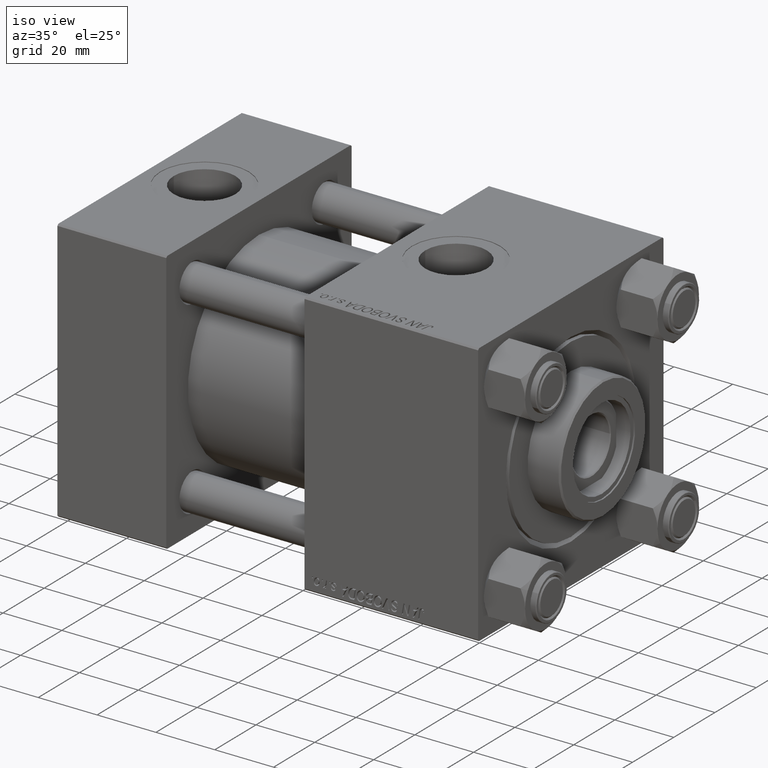
[diagram: clean part render]
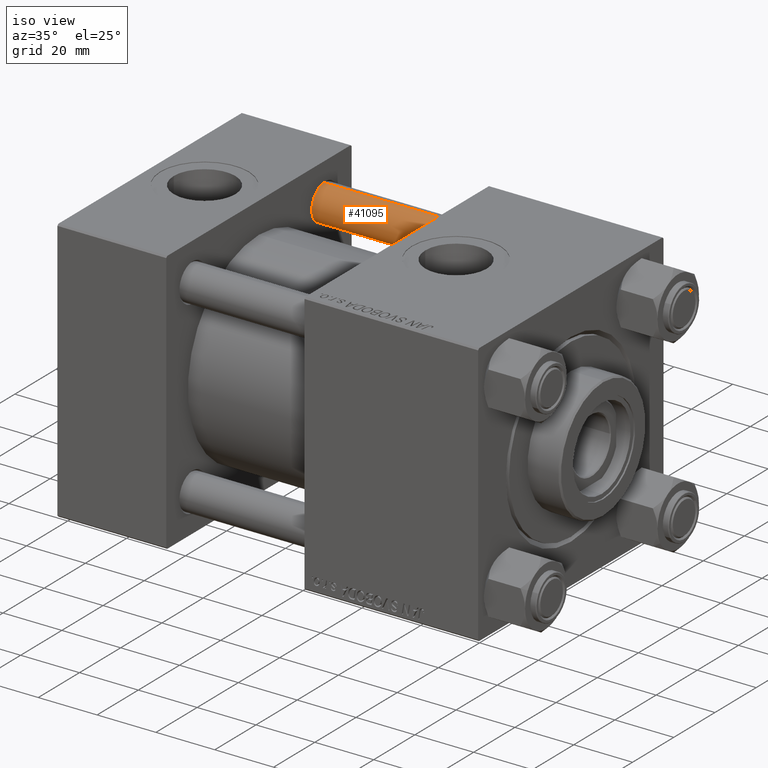
[diagram: same view with one face highlighted and labeled with its STEP entity id]
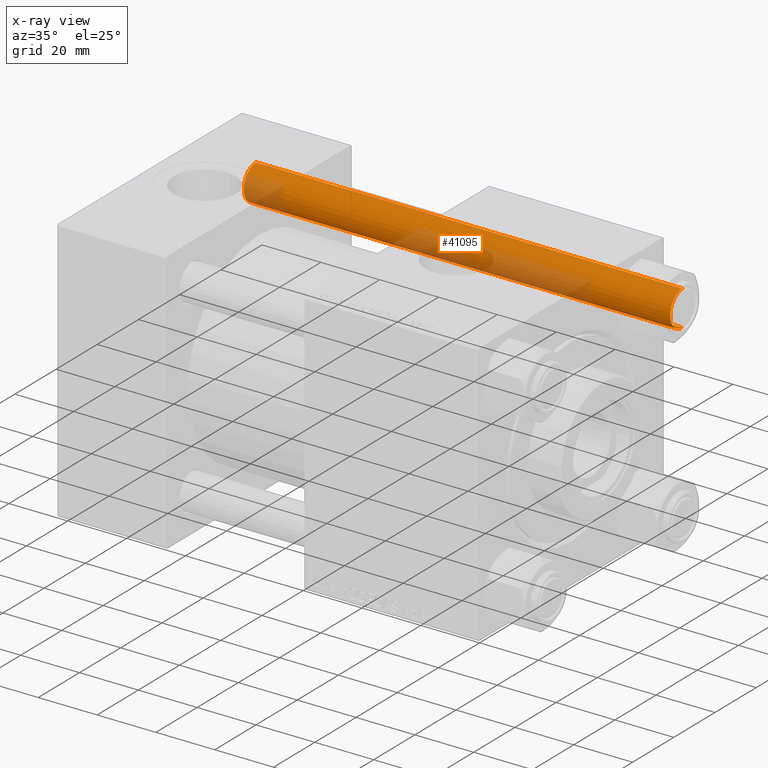
[diagram: x-ray of the same camera — body ghosted, the highlighted face saturated]
A machine part, iso view. The second image highlights one B-rep face of the part: STEP entity #41095.
The next image is the same camera in x-ray: the body ghosted, the highlighted face saturated — about 30% of this face is hidden behind the body in this view.
In plain terms, the highlighted cylindrical surface (edge-blend (fillet) strip) has radius 6 mm, axis along (-1, -0, -0).
Its self-contained STEP definition (entity closure, byte-faithful):
#672 = DIRECTION ( 'NONE',  ( -0.000000000000000000, -0.000000000000000000, -1.000000000000000000 ) ) ;
#792 = LINE ( 'NONE', #20171, #31209 ) ;
#1192 = ORIENTED_EDGE ( 'NONE', *, *, #1891, .T. ) ;
#1891 = EDGE_CURVE ( 'NONE', #30953, #5823, #38316, .T. ) ;
#4831 = ORIENTED_EDGE ( 'NONE', *, *, #19213, .T. ) ;
#5280 = VECTOR ( 'NONE', #672, 1000.000000000000000 ) ;
#5823 = VERTEX_POINT ( 'NONE', #24023 ) ;
#6479 = CYLINDRICAL_SURFACE ( 'NONE', #33219, 6.000000000000000888 ) ;
#7083 = CARTESIAN_POINT ( 'NONE',  ( -6.000000000000000888, 0.000000000000000000, 0.5000000000000004441 ) ) ;
#7944 = CARTESIAN_POINT ( 'NONE',  ( 6.000000000000000888, 7.347880794884120722E-16, 145.5000000000000000 ) ) ;
#9773 = DIRECTION ( 'NONE',  ( 0.000000000000000000, 0.000000000000000000, -1.000000000000000000 ) ) ;
#10095 = EDGE_LOOP ( 'NONE', ( #26724, #1192, #4831, #17406 ) ) ;
#10180 = AXIS2_PLACEMENT_3D ( 'NONE', #44268, #9773, #25165 ) ;
#14081 = CIRCLE ( 'NONE', #42214, 6.000000000000000888 ) ;
#16633 = DIRECTION ( 'NONE',  ( -0.000000000000000000, -0.000000000000000000, -1.000000000000000000 ) ) ;
#17074 = FACE_OUTER_BOUND ( 'NONE', #10095, .T. ) ;
#17406 = ORIENTED_EDGE ( 'NONE', *, *, #47686, .T. ) ;
#19213 = EDGE_CURVE ( 'NONE', #5823, #34641, #20055, .T. ) ;
#19566 = CARTESIAN_POINT ( 'NONE',  ( -6.000000000000000888, 0.000000000000000000, 146.0000000000000000 ) ) ;
#20054 = DIRECTION ( 'NONE',  ( -0.000000000000000000, -0.000000000000000000, 1.000000000000000000 ) ) ;
#20055 = LINE ( 'NONE', #19566, #5280 ) ;
#20171 = CARTESIAN_POINT ( 'NONE',  ( 6.000000000000000888, 7.347880794884120722E-16, 146.0000000000000000 ) ) ;
#21843 = CARTESIAN_POINT ( 'NONE',  ( 0.000000000000000000, 0.000000000000000000, 146.0000000000000000 ) ) ;
#22340 = CARTESIAN_POINT ( 'NONE',  ( 6.000000000000000888, 7.347880794884120722E-16, 0.5000000000000004441 ) ) ;
#24023 = CARTESIAN_POINT ( 'NONE',  ( -6.000000000000000888, 0.000000000000000000, 145.5000000000000000 ) ) ;
#24053 = EDGE_CURVE ( 'NONE', #30953, #42109, #792, .T. ) ;
#25165 = DIRECTION ( 'NONE',  ( 1.000000000000000000, 0.000000000000000000, 0.000000000000000000 ) ) ;
#26724 = ORIENTED_EDGE ( 'NONE', *, *, #24053, .F. ) ;
#28683 = DIRECTION ( 'NONE',  ( -1.000000000000000000, 0.000000000000000000, 0.000000000000000000 ) ) ;
#30953 = VERTEX_POINT ( 'NONE', #7944 ) ;
#31209 = VECTOR ( 'NONE', #16633, 1000.000000000000000 ) ;
#33219 = AXIS2_PLACEMENT_3D ( 'NONE', #21843, #48767, #28683 ) ;
#34641 = VERTEX_POINT ( 'NONE', #7083 ) ;
#35411 = DIRECTION ( 'NONE',  ( 1.000000000000000000, 0.000000000000000000, 0.000000000000000000 ) ) ;
#38316 = CIRCLE ( 'NONE', #10180, 6.000000000000000888 ) ;
#39179 = CARTESIAN_POINT ( 'NONE',  ( 0.000000000000000000, 0.000000000000000000, 0.5000000000000004441 ) ) ;
#41095 = ADVANCED_FACE ( 'NONE', ( #17074 ), #6479, .T. ) ;
#42109 = VERTEX_POINT ( 'NONE', #22340 ) ;
#42214 = AXIS2_PLACEMENT_3D ( 'NONE', #39179, #20054, #35411 ) ;
#44268 = CARTESIAN_POINT ( 'NONE',  ( 0.000000000000000000, 0.000000000000000000, 145.5000000000000000 ) ) ;
#47686 = EDGE_CURVE ( 'NONE', #34641, #42109, #14081, .T. ) ;
#48767 = DIRECTION ( 'NONE',  ( -0.000000000000000000, -0.000000000000000000, -1.000000000000000000 ) ) ;